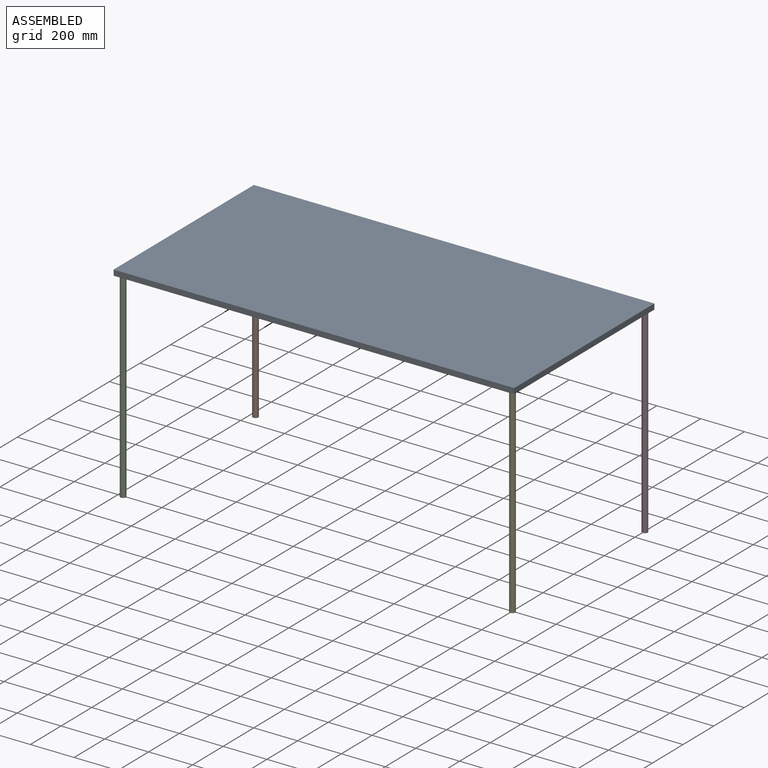
[diagram: assembled view]
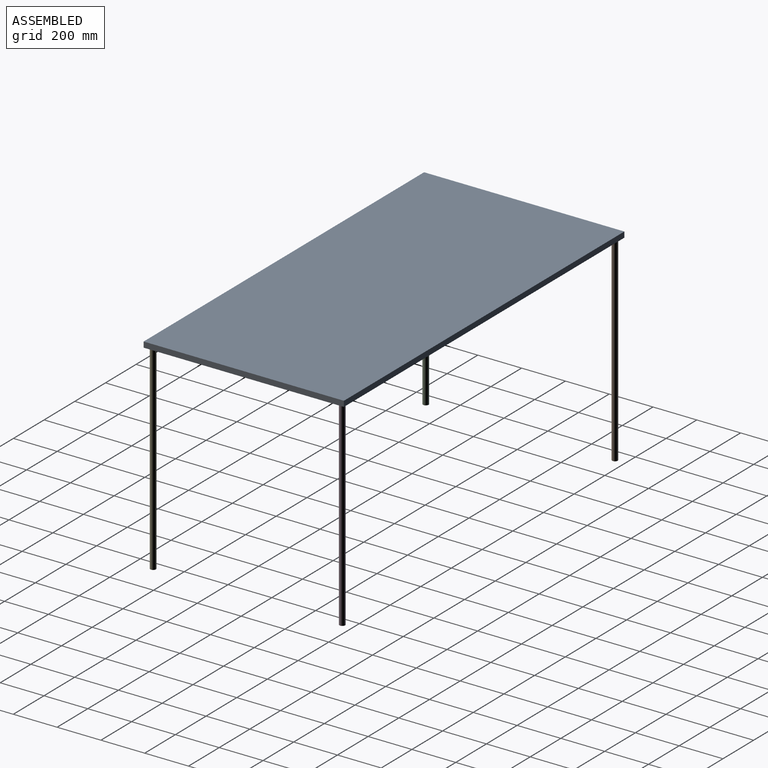
[diagram: assembled view, second angle]
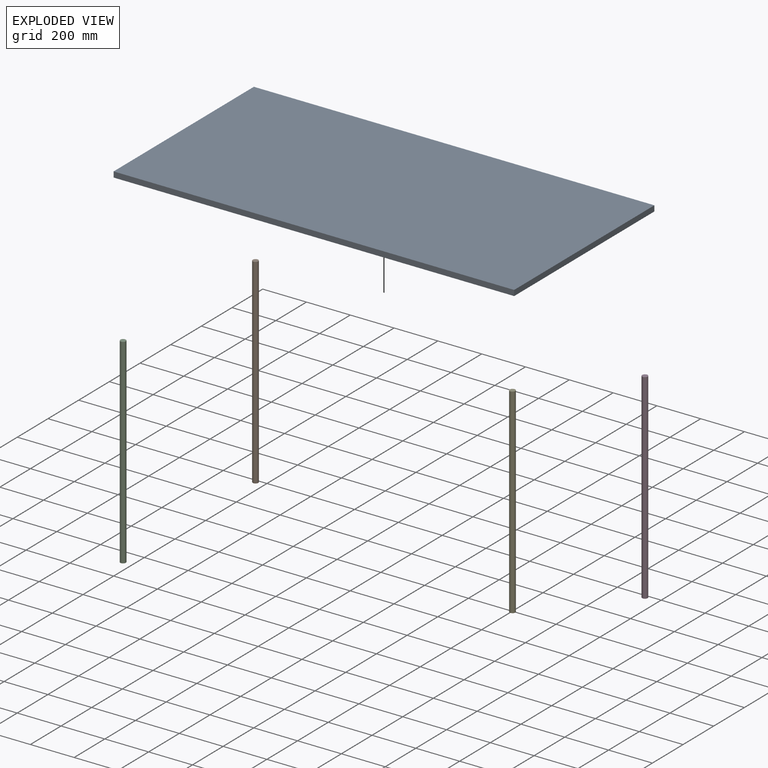
[diagram: exploded view]
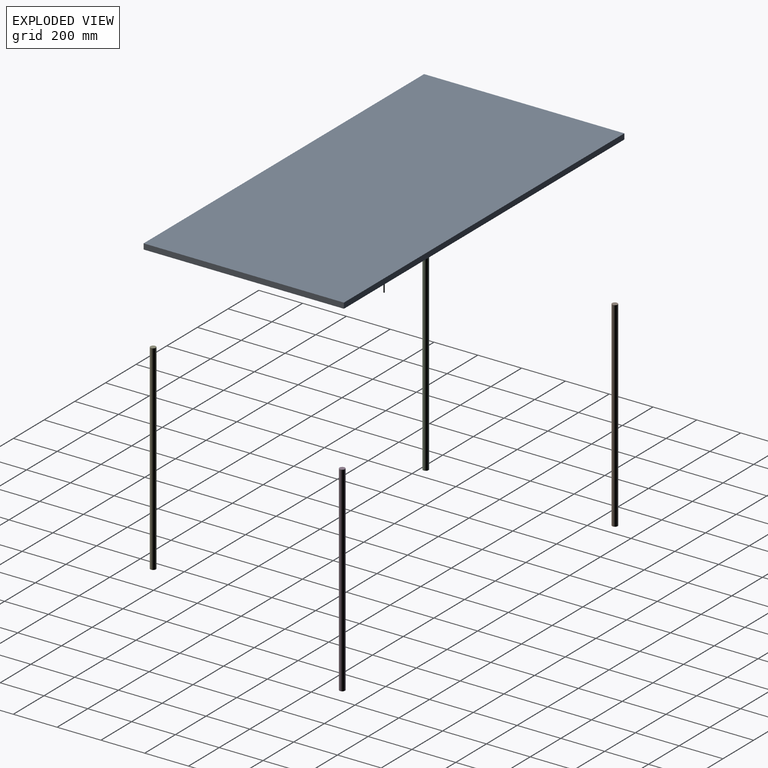
[diagram: exploded view, second angle]
ASSEMBLY  parts=5 mates=4
PART A: 14 faces, bbox 1828.8x914.4x25.4 mm
  f0: plane 914.4x25.4mm, normal (-1,0,0), area 23225.8mm2, adj f1,f3,f4,f5
  f1: plane 1828.8x25.4mm, normal (0,-1,0), area 46451.5mm2, adj f0,f2,f4,f5
  f2: plane 914.4x25.4mm, normal (1,0,0), area 23225.8mm2, adj f1,f3,f4,f5
  f3: plane 1828.8x25.4mm, normal (0,1,0), area 46451.5mm2, adj f0,f2,f4,f5
  f4: plane 1828.8x914.4mm, normal (0,0,1), area 1672254.7mm2, adj f0,f1,f2,f3
  f5: plane 1828.8x914.4mm, normal (0,0,-1), area 1670227.9mm2, adj f0,f1,f2,f3,f6,f8,f10,f12
  f6: cylinder r=12.7mm len=25.4mm, axis (0,0,-1), area 2mm2, adj f5,f7
  f7: plane 25.4x25.4mm, normal (0,0,-1), area 506.7mm2, adj f6
  f8: cylinder r=12.7mm len=25.4mm, axis (0,0,-1), area 2mm2, adj f5,f9
  f9: plane 25.4x25.4mm, normal (0,0,-1), area 506.7mm2, adj f8
  f10: cylinder r=12.7mm len=25.4mm, axis (0,0,-1), area 2mm2, adj f5,f11
  f11: plane 25.4x25.4mm, normal (0,0,-1), area 506.7mm2, adj f10
  f12: cylinder r=12.7mm len=25.4mm, axis (0,0,-1), area 2mm2, adj f5,f13
  f13: plane 25.4x25.4mm, normal (0,0,-1), area 506.7mm2, adj f12
PART B: 3 faces, bbox 25.4x25.4x914.4 mm
  f0: cylinder r=12.7mm len=914.4mm, axis (0,0,-1), area 72965.9mm2, adj f1,f2
  f1: plane 25.4x25.4mm, normal (0,0,1), area 506.7mm2, adj f0
  f2: plane 25.4x25.4mm, normal (0,0,-1), area 506.7mm2, adj f0
PART C: same geometry as B
PART D: same geometry as B
PART E: same geometry as B
PLACE A t=(-25.93,37.12,-40.67)mm
PLACE B t=(-0.53,926.12,-955.07)mm
PLACE C t=(-0.53,62.52,-955.07)mm
PLACE D t=(1777.47,926.12,-955.07)mm
PLACE E t=(1777.47,62.52,-955.07)mm
MATE fastened C.f0 <-> A.f8  axis (0,0,1) through (-0.53,62.52,-40.67)mm
MATE fastened B.f0 <-> A.f10  axis (0,0,1) through (-0.53,926.12,-40.67)mm
MATE fastened E.f0 <-> A.f12  axis (0,0,1) through (1777.47,62.52,-40.67)mm
MATE fastened D.f0 <-> A.f6  axis (0,0,-1) through (1777.47,926.12,-40.67)mm
